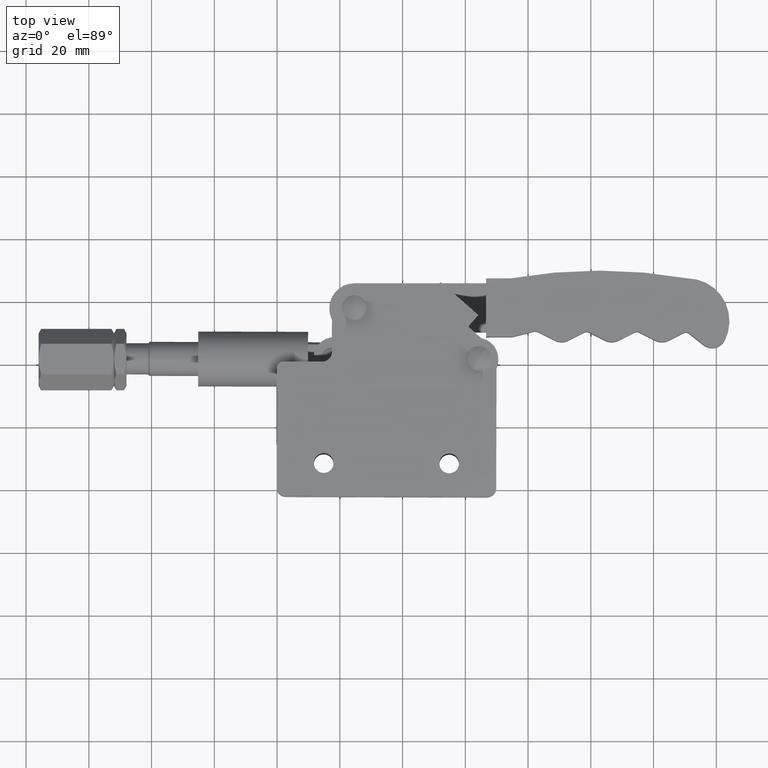
[diagram: clean part render]
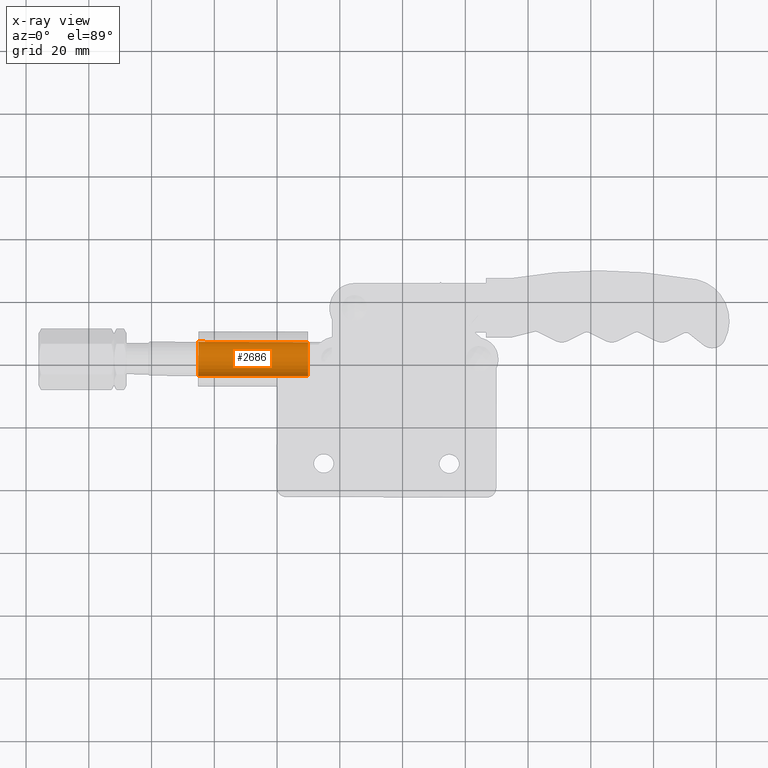
[diagram: x-ray — body ghosted, one internal face saturated and labeled with its STEP entity id]
A machine part, top view, then the same camera in x-ray: the body is ghosted and one INTERNAL B-rep face — a face not visible from any outside direction — is saturated and labeled: STEP entity #2686.
In plain terms, the highlighted cylindrical surface (edge-blend (fillet) strip) has radius 5.45 mm, axis along (-1, 0.0028, 0).
Its self-contained STEP definition (entity closure, byte-faithful):
#26 = ORIENTED_EDGE ( 'NONE', *, *, #4499, .T. ) ;
#330 = DIRECTION ( 'NONE',  ( 1.000000000000000000, 0.0000000000000000000, 0.0000000000000000000 ) ) ;
#519 = DIRECTION ( 'NONE',  ( 0.0000000000000000000, 1.000000000000000000, 0.0000000000000000000 ) ) ;
#848 = CIRCLE ( 'NONE', #7347, 5.450000000000000200 ) ;
#1640 = AXIS2_PLACEMENT_3D ( 'NONE', #4151, #6332, #4189 ) ;
#1657 = DIRECTION ( 'NONE',  ( -1.000000000000000000, 0.0000000000000000000, -0.0000000000000000000 ) ) ;
#2179 = FACE_OUTER_BOUND ( 'NONE', #4555, .T. ) ;
#2277 = CARTESIAN_POINT ( 'NONE',  ( 9.900000000000005700, 27.19999999999998500, -11.79999999999999900 ) ) ;
#2447 = CARTESIAN_POINT ( 'NONE',  ( 9.900000000000005700, 27.19999999999998500, -11.79999999999999900 ) ) ;
#2686 = ADVANCED_FACE ( 'NONE', ( #2179 ), #4408, .F. ) ;
#3006 = CARTESIAN_POINT ( 'NONE',  ( 9.900000000000005700, 16.29999999999998300, -11.79999999999999900 ) ) ;
#3542 = VERTEX_POINT ( 'NONE', #6352 ) ;
#3550 = EDGE_CURVE ( 'NONE', #3601, #3542, #4457, .T. ) ;
#3601 = VERTEX_POINT ( 'NONE', #4863 ) ;
#3855 = CARTESIAN_POINT ( 'NONE',  ( -25.09999999999999800, 27.19999999999998500, -11.79999999999999900 ) ) ;
#3972 = VERTEX_POINT ( 'NONE', #2277 ) ;
#4151 = CARTESIAN_POINT ( 'NONE',  ( 9.900000000000005700, 21.74999999999998600, -11.79999999999999900 ) ) ;
#4189 = DIRECTION ( 'NONE',  ( 0.0000000000000000000, -1.000000000000000000, 0.0000000000000000000 ) ) ;
#4408 = CYLINDRICAL_SURFACE ( 'NONE', #1640, 5.450000000000000200 ) ;
#4418 = DIRECTION ( 'NONE',  ( -1.000000000000000000, 0.0000000000000000000, -0.0000000000000000000 ) ) ;
#4431 = ORIENTED_EDGE ( 'NONE', *, *, #3550, .F. ) ;
#4457 = LINE ( 'NONE', #3006, #6059 ) ;
#4499 = EDGE_CURVE ( 'NONE', #3972, #5933, #6116, .T. ) ;
#4555 = EDGE_LOOP ( 'NONE', ( #7119, #26, #5485, #4431 ) ) ;
#4688 = CIRCLE ( 'NONE', #4798, 5.450000000000000200 ) ;
#4798 = AXIS2_PLACEMENT_3D ( 'NONE', #7023, #7585, #6343 ) ;
#4863 = CARTESIAN_POINT ( 'NONE',  ( 9.900000000000005700, 16.29999999999998300, -11.79999999999999900 ) ) ;
#5094 = CARTESIAN_POINT ( 'NONE',  ( 9.900000000000005700, 21.74999999999998600, -11.79999999999999900 ) ) ;
#5485 = ORIENTED_EDGE ( 'NONE', *, *, #6062, .F. ) ;
#5932 = VECTOR ( 'NONE', #4418, 1000.000000000000000 ) ;
#5933 = VERTEX_POINT ( 'NONE', #3855 ) ;
#6059 = VECTOR ( 'NONE', #1657, 1000.000000000000000 ) ;
#6062 = EDGE_CURVE ( 'NONE', #3542, #5933, #4688, .T. ) ;
#6116 = LINE ( 'NONE', #2447, #5932 ) ;
#6332 = DIRECTION ( 'NONE',  ( -1.000000000000000000, 0.0000000000000000000, -0.0000000000000000000 ) ) ;
#6343 = DIRECTION ( 'NONE',  ( 0.0000000000000000000, 1.000000000000000000, 0.0000000000000000000 ) ) ;
#6352 = CARTESIAN_POINT ( 'NONE',  ( -25.09999999999999800, 16.29999999999998300, -11.79999999999999900 ) ) ;
#6481 = EDGE_CURVE ( 'NONE', #3601, #3972, #848, .T. ) ;
#7023 = CARTESIAN_POINT ( 'NONE',  ( -25.09999999999999800, 21.74999999999998600, -11.79999999999999900 ) ) ;
#7119 = ORIENTED_EDGE ( 'NONE', *, *, #6481, .T. ) ;
#7347 = AXIS2_PLACEMENT_3D ( 'NONE', #5094, #330, #519 ) ;
#7585 = DIRECTION ( 'NONE',  ( 1.000000000000000000, 0.0000000000000000000, 0.0000000000000000000 ) ) ;